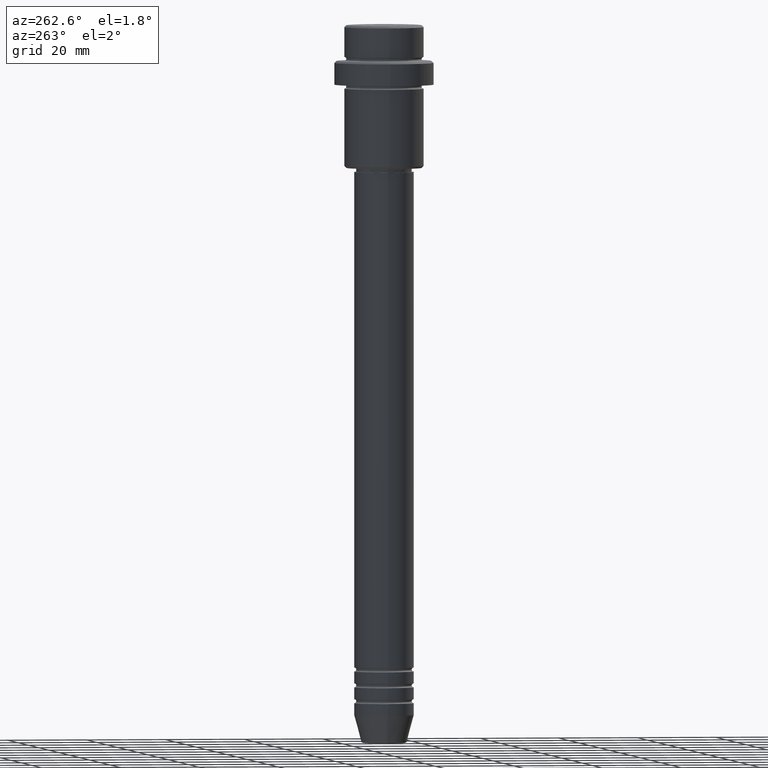
[diagram: clean part render]
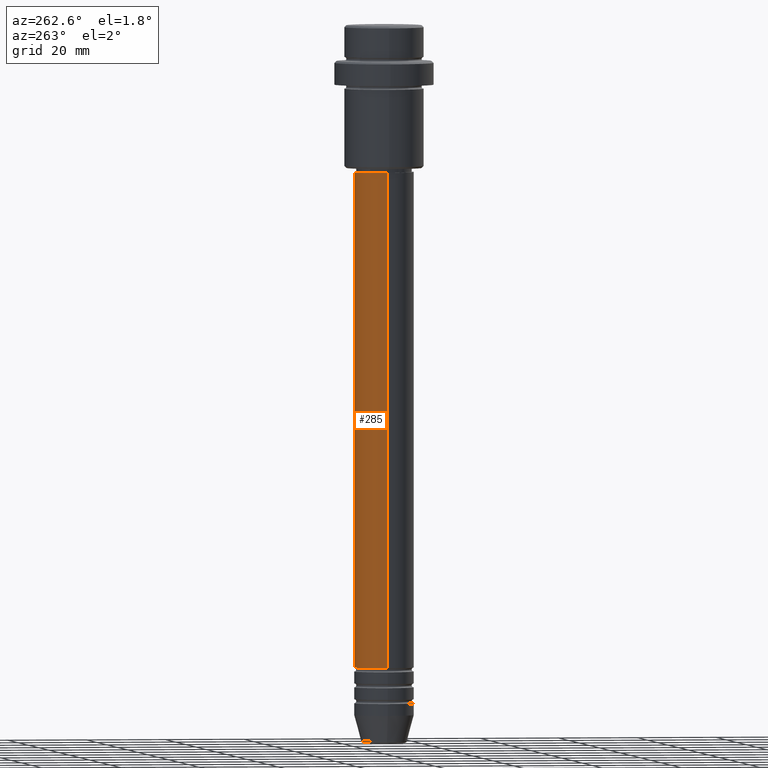
[diagram: same view with one face highlighted and labeled with its STEP entity id]
A machine part, auxiliary view. The second image highlights one B-rep face of the part: STEP entity #285.
In plain terms, the highlighted cylindrical surface (edge-blend (fillet) strip) has radius 7.5 mm, axis along (-0, -0, 1).
Its self-contained STEP definition (entity closure, byte-faithful):
#3 = VERTEX_POINT ( 'NONE', #680 ) ;
#83 = ORIENTED_EDGE ( 'NONE', *, *, #196, .F. ) ;
#84 = CARTESIAN_POINT ( 'NONE',  ( 0.000000000000000000, 0.000000000000000000, -161.9999999999998579 ) ) ;
#87 = FACE_OUTER_BOUND ( 'NONE', #1374, .T. ) ;
#196 = EDGE_CURVE ( 'NONE', #885, #270, #983, .T. ) ;
#270 = VERTEX_POINT ( 'NONE', #407 ) ;
#285 = ADVANCED_FACE ( 'NONE', ( #87 ), #1380, .T. ) ;
#298 = CARTESIAN_POINT ( 'NONE',  ( -7.500000000000000000, 9.184850993605147944E-16, -161.9999999999998579 ) ) ;
#383 = DIRECTION ( 'NONE',  ( 1.000000000000000000, 0.000000000000000000, 0.000000000000000000 ) ) ;
#399 = CARTESIAN_POINT ( 'NONE',  ( 0.000000000000000000, 0.000000000000000000, -36.99999999999999289 ) ) ;
#407 = CARTESIAN_POINT ( 'NONE',  ( -7.500000000000000000, 9.184850993605147944E-16, -36.99999999999999289 ) ) ;
#414 = CIRCLE ( 'NONE', #1300, 7.500000000000000000 ) ;
#509 = CARTESIAN_POINT ( 'NONE',  ( 0.000000000000000000, 0.000000000000000000, 0.000000000000000000 ) ) ;
#530 = CARTESIAN_POINT ( 'NONE',  ( 7.500000000000000000, 0.000000000000000000, -36.99999999999999289 ) ) ;
#580 = ORIENTED_EDGE ( 'NONE', *, *, #596, .F. ) ;
#596 = EDGE_CURVE ( 'NONE', #3, #885, #902, .T. ) ;
#621 = EDGE_CURVE ( 'NONE', #783, #270, #912, .T. ) ;
#680 = CARTESIAN_POINT ( 'NONE',  ( 7.500000000000000000, 0.000000000000000000, -161.9999999999998579 ) ) ;
#750 = DIRECTION ( 'NONE',  ( 1.000000000000000000, 0.000000000000000000, 0.000000000000000000 ) ) ;
#783 = VERTEX_POINT ( 'NONE', #298 ) ;
#789 = EDGE_CURVE ( 'NONE', #3, #783, #414, .T. ) ;
#800 = CARTESIAN_POINT ( 'NONE',  ( -7.500000000000000000, 9.184850993605147944E-16, 0.000000000000000000 ) ) ;
#826 = VECTOR ( 'NONE', #927, 1000.000000000000000 ) ;
#885 = VERTEX_POINT ( 'NONE', #530 ) ;
#902 = LINE ( 'NONE', #993, #1273 ) ;
#911 = AXIS2_PLACEMENT_3D ( 'NONE', #509, #1191, #1177 ) ;
#912 = LINE ( 'NONE', #800, #826 ) ;
#927 = DIRECTION ( 'NONE',  ( -0.000000000000000000, -0.000000000000000000, 1.000000000000000000 ) ) ;
#983 = CIRCLE ( 'NONE', #1362, 7.500000000000000000 ) ;
#993 = CARTESIAN_POINT ( 'NONE',  ( 7.500000000000000000, 0.000000000000000000, 0.000000000000000000 ) ) ;
#1021 = DIRECTION ( 'NONE',  ( -0.000000000000000000, -0.000000000000000000, 1.000000000000000000 ) ) ;
#1177 = DIRECTION ( 'NONE',  ( 1.000000000000000000, 0.000000000000000000, 0.000000000000000000 ) ) ;
#1191 = DIRECTION ( 'NONE',  ( -0.000000000000000000, -0.000000000000000000, 1.000000000000000000 ) ) ;
#1200 = DIRECTION ( 'NONE',  ( -0.000000000000000000, -0.000000000000000000, 1.000000000000000000 ) ) ;
#1265 = DIRECTION ( 'NONE',  ( -0.000000000000000000, -0.000000000000000000, 1.000000000000000000 ) ) ;
#1273 = VECTOR ( 'NONE', #1200, 1000.000000000000000 ) ;
#1300 = AXIS2_PLACEMENT_3D ( 'NONE', #84, #1265, #750 ) ;
#1362 = AXIS2_PLACEMENT_3D ( 'NONE', #399, #1021, #383 ) ;
#1374 = EDGE_LOOP ( 'NONE', ( #1381, #1411, #83, #580 ) ) ;
#1380 = CYLINDRICAL_SURFACE ( 'NONE', #911, 7.500000000000000000 ) ;
#1381 = ORIENTED_EDGE ( 'NONE', *, *, #789, .T. ) ;
#1411 = ORIENTED_EDGE ( 'NONE', *, *, #621, .T. ) ;